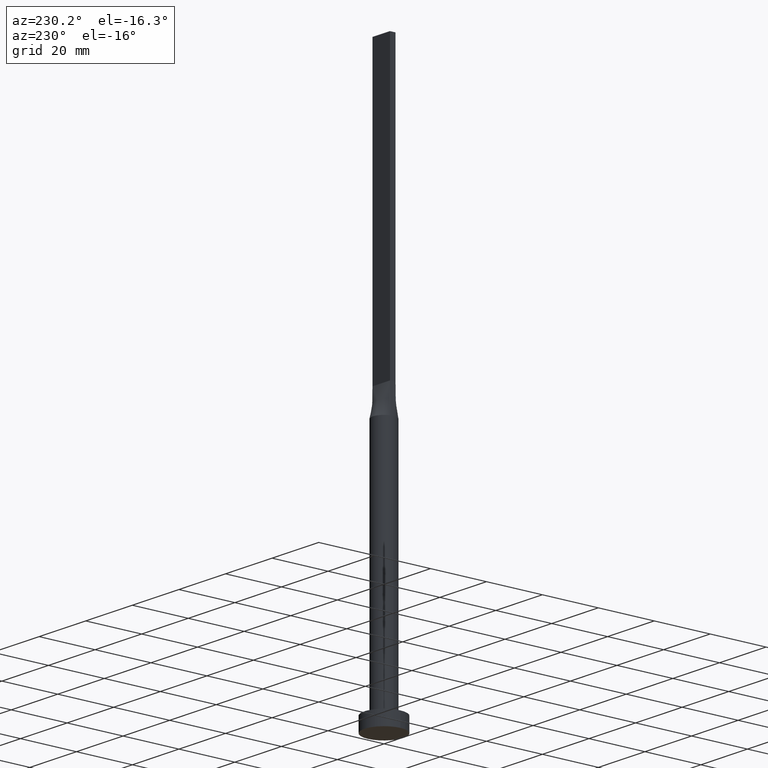
[diagram: clean part render]
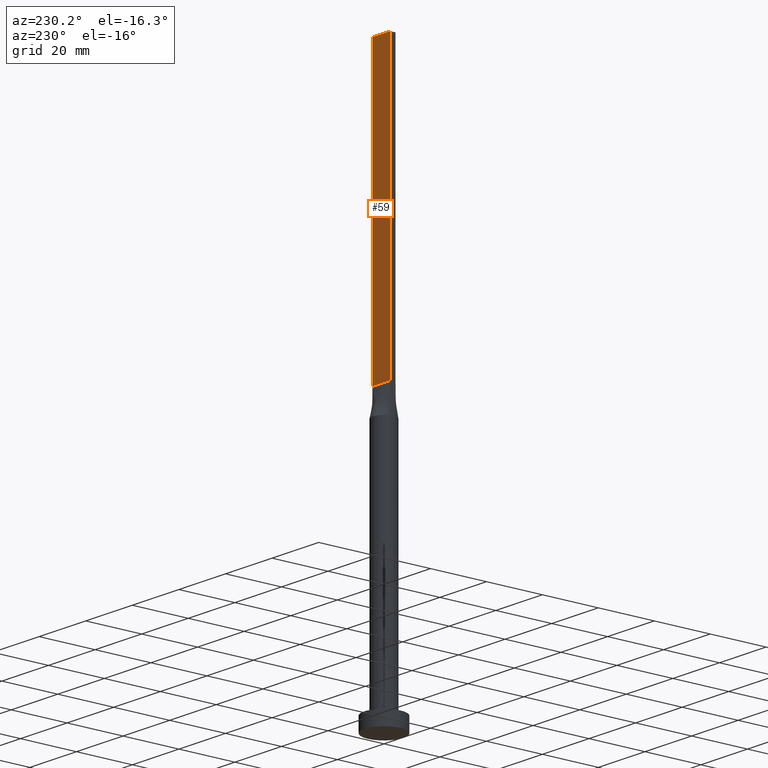
[diagram: same view with one face highlighted and labeled with its STEP entity id]
A machine part, auxiliary view. The second image highlights one B-rep face of the part: STEP entity #59.
In plain terms, the highlighted planar face has unit normal (0, -1, 0).
Its self-contained STEP definition (entity closure, byte-faithful):
#39 = VERTEX_POINT ( 'NONE', #175 ) ;
#50 = CARTESIAN_POINT ( 'NONE',  ( 3.750000000000000000, 1.000000000000000000, 200.0000000000000000 ) ) ;
#59 = ADVANCED_FACE ( 'NONE', ( #548 ), #373, .F. ) ;
#72 = LINE ( 'NONE', #294, #409 ) ;
#73 = CARTESIAN_POINT ( 'NONE',  ( -3.750000000000000000, 1.000000000000000000, 100.0000000000000000 ) ) ;
#76 = DIRECTION ( 'NONE',  ( -1.000000000000000000, -0.000000000000000000, -0.000000000000000000 ) ) ;
#99 = DIRECTION ( 'NONE',  ( 0.000000000000000000, -1.000000000000000000, 0.000000000000000000 ) ) ;
#111 = AXIS2_PLACEMENT_3D ( 'NONE', #50, #99, #148 ) ;
#115 = LINE ( 'NONE', #343, #341 ) ;
#148 = DIRECTION ( 'NONE',  ( 0.000000000000000000, -0.000000000000000000, -1.000000000000000000 ) ) ;
#154 = LINE ( 'NONE', #559, #157 ) ;
#157 = VECTOR ( 'NONE', #235, 1000.000000000000000 ) ;
#173 = LINE ( 'NONE', #73, #535 ) ;
#175 = CARTESIAN_POINT ( 'NONE',  ( -3.750000000000000000, 1.000000000000000000, 100.0000000000000000 ) ) ;
#176 = CARTESIAN_POINT ( 'NONE',  ( -3.750000000000000000, 1.000000000000000000, 200.0000000000000000 ) ) ;
#186 = EDGE_CURVE ( 'NONE', #300, #510, #72, .T. ) ;
#235 = DIRECTION ( 'NONE',  ( -1.000000000000000000, 0.000000000000000000, 0.000000000000000000 ) ) ;
#257 = EDGE_CURVE ( 'NONE', #429, #39, #115, .T. ) ;
#264 = EDGE_LOOP ( 'NONE', ( #554, #568, #570, #326 ) ) ;
#294 = CARTESIAN_POINT ( 'NONE',  ( 3.750000000000000000, 1.000000000000000000, 200.0000000000000000 ) ) ;
#300 = VERTEX_POINT ( 'NONE', #423 ) ;
#326 = ORIENTED_EDGE ( 'NONE', *, *, #186, .T. ) ;
#341 = VECTOR ( 'NONE', #518, 1000.000000000000000 ) ;
#343 = CARTESIAN_POINT ( 'NONE',  ( -3.750000000000000000, 1.000000000000000000, 200.0000000000000000 ) ) ;
#373 = PLANE ( 'NONE',  #111 ) ;
#386 = EDGE_CURVE ( 'NONE', #510, #39, #173, .T. ) ;
#409 = VECTOR ( 'NONE', #428, 1000.000000000000000 ) ;
#423 = CARTESIAN_POINT ( 'NONE',  ( 3.750000000000000000, 1.000000000000000000, 200.0000000000000000 ) ) ;
#428 = DIRECTION ( 'NONE',  ( -0.000000000000000000, -0.000000000000000000, -1.000000000000000000 ) ) ;
#429 = VERTEX_POINT ( 'NONE', #176 ) ;
#510 = VERTEX_POINT ( 'NONE', #547 ) ;
#518 = DIRECTION ( 'NONE',  ( -0.000000000000000000, -0.000000000000000000, -1.000000000000000000 ) ) ;
#535 = VECTOR ( 'NONE', #76, 1000.000000000000000 ) ;
#538 = EDGE_CURVE ( 'NONE', #300, #429, #154, .T. ) ;
#547 = CARTESIAN_POINT ( 'NONE',  ( 3.750000000000000000, 1.000000000000000000, 100.0000000000000000 ) ) ;
#548 = FACE_OUTER_BOUND ( 'NONE', #264, .T. ) ;
#554 = ORIENTED_EDGE ( 'NONE', *, *, #386, .T. ) ;
#559 = CARTESIAN_POINT ( 'NONE',  ( 3.750000000000000000, 1.000000000000000000, 200.0000000000000000 ) ) ;
#568 = ORIENTED_EDGE ( 'NONE', *, *, #257, .F. ) ;
#570 = ORIENTED_EDGE ( 'NONE', *, *, #538, .F. ) ;